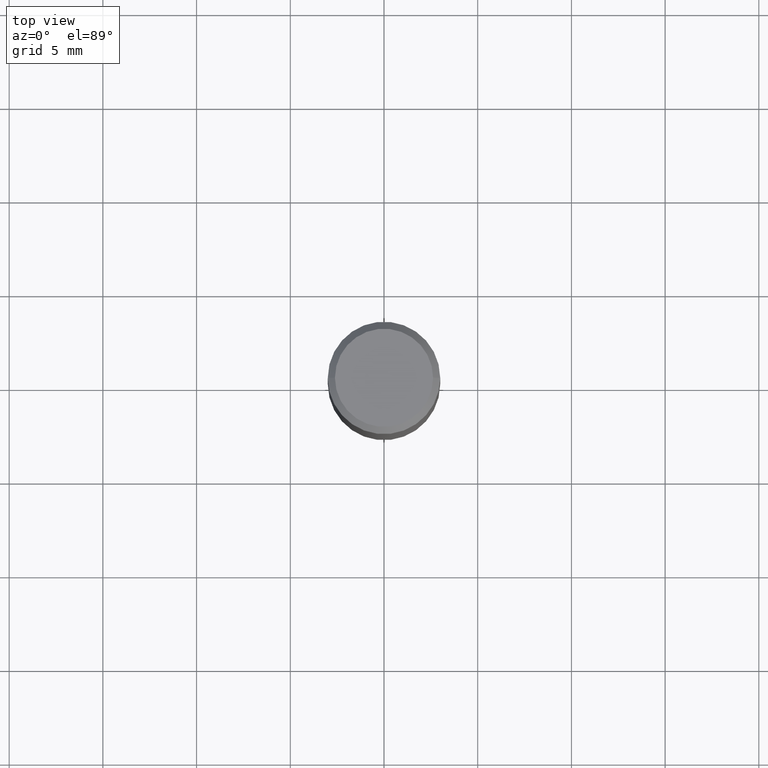
[diagram: clean part render]
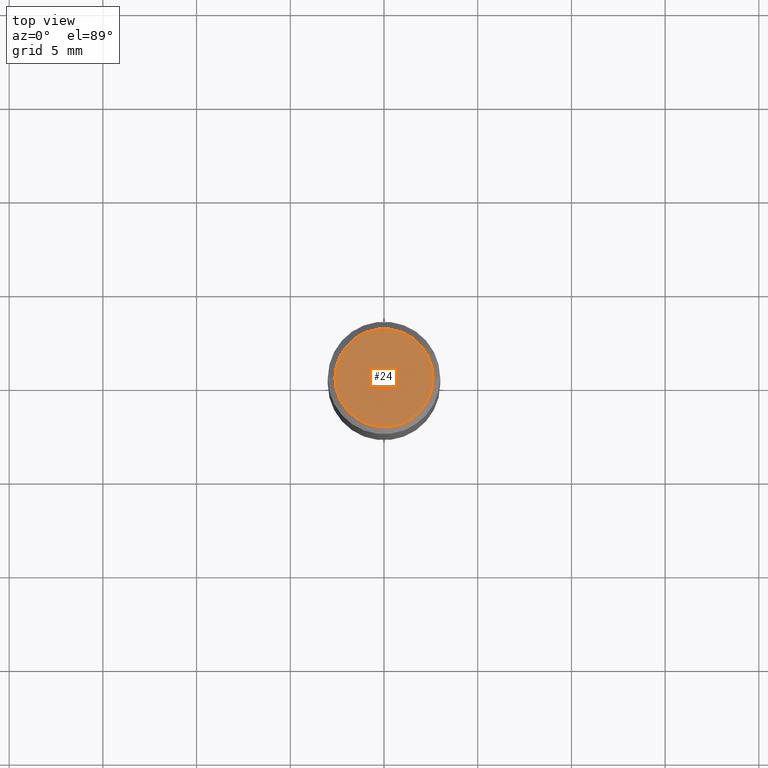
[diagram: same view with one face highlighted and labeled with its STEP entity id]
A machine part, top view. The second image highlights one B-rep face of the part: STEP entity #24.
In plain terms, the highlighted planar face has unit normal (0, -0, -1).
Its self-contained STEP definition (entity closure, byte-faithful):
#2 = AXIS2_PLACEMENT_3D ( 'NONE', #188, #145, #253 ) ;
#21 = DIRECTION ( 'NONE',  ( -1.000000000000000000, 6.982962677686265922E-15, -4.876176775795935793E-29 ) ) ;
#24 = ADVANCED_FACE ( 'NONE', ( #344 ), #202, .F. ) ;
#25 = VERTEX_POINT ( 'NONE', #443 ) ;
#52 = DIRECTION ( 'NONE',  ( -2.445468806185136597E-29, 3.491481338843145583E-15, 1.000000000000000000 ) ) ;
#83 = ORIENTED_EDGE ( 'NONE', *, *, #324, .T. ) ;
#85 = EDGE_LOOP ( 'NONE', ( #194, #83 ) ) ;
#145 = DIRECTION ( 'NONE',  ( -2.445468806185136597E-29, 3.491481338843145583E-15, 1.000000000000000000 ) ) ;
#188 = CARTESIAN_POINT ( 'NONE',  ( 4.647400995173613138E-45, -6.635256932220833331E-31, -1.900413116462290932E-16 ) ) ;
#194 = ORIENTED_EDGE ( 'NONE', *, *, #368, .T. ) ;
#202 = PLANE ( 'NONE',  #354 ) ;
#205 = CARTESIAN_POINT ( 'NONE',  ( 4.647400995173613138E-45, -6.635256932220833331E-31, -1.900413116462290932E-16 ) ) ;
#253 = DIRECTION ( 'NONE',  ( 1.000000000000000000, -6.982962677686265922E-15, 4.883331232093008327E-29 ) ) ;
#260 = CIRCLE ( 'NONE', #2, 0.1031000000000000111 ) ;
#272 = DIRECTION ( 'NONE',  ( 2.438088387897960049E-29, -3.491481338843145188E-15, -1.000000000000000000 ) ) ;
#290 = AXIS2_PLACEMENT_3D ( 'NONE', #205, #52, #455 ) ;
#324 = EDGE_CURVE ( 'NONE', #441, #25, #435, .T. ) ;
#344 = FACE_OUTER_BOUND ( 'NONE', #85, .T. ) ;
#352 = CARTESIAN_POINT ( 'NONE',  ( 7.199434520694541042E-16, 0.1031000000000000111, -4.549923818578428559E-16 ) ) ;
#354 = AXIS2_PLACEMENT_3D ( 'NONE', #352, #272, #21 ) ;
#368 = EDGE_CURVE ( 'NONE', #25, #441, #260, .T. ) ;
#409 = CARTESIAN_POINT ( 'NONE',  ( 0.1031000000000000111, -7.849571885948552706E-16, -1.900413116462238423E-16 ) ) ;
#435 = CIRCLE ( 'NONE', #290, 0.1031000000000000111 ) ;
#441 = VERTEX_POINT ( 'NONE', #409 ) ;
#443 = CARTESIAN_POINT ( 'NONE',  ( -0.1031000000000000111, 7.461295621107772493E-16, -1.900413116462341961E-16 ) ) ;
#455 = DIRECTION ( 'NONE',  ( 1.000000000000000000, -6.982962677686265922E-15, 4.883331232093008327E-29 ) ) ;